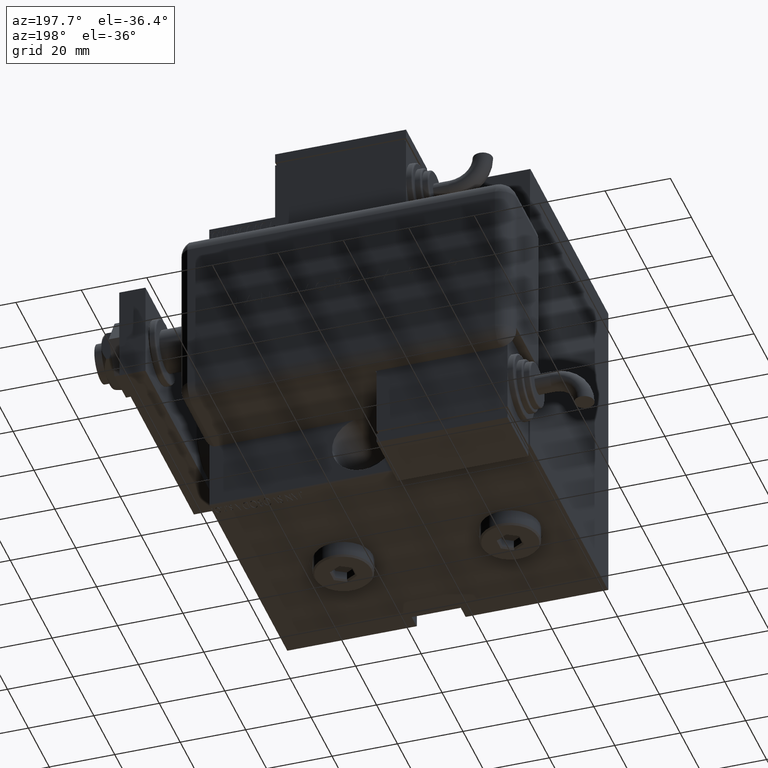
[diagram: clean part render]
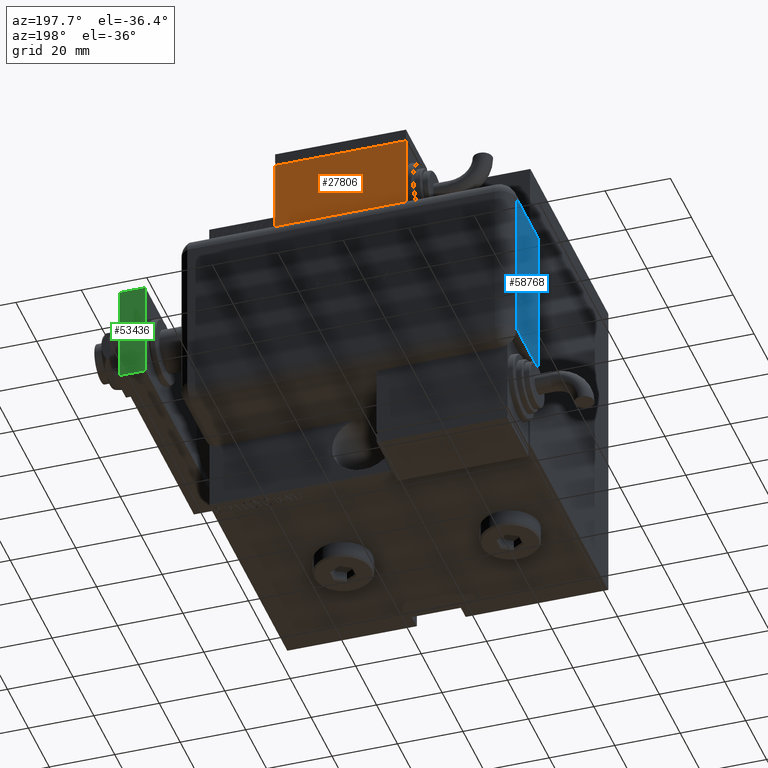
[diagram: same view with three faces highlighted in distinct colors, each labeled with its STEP entity id]
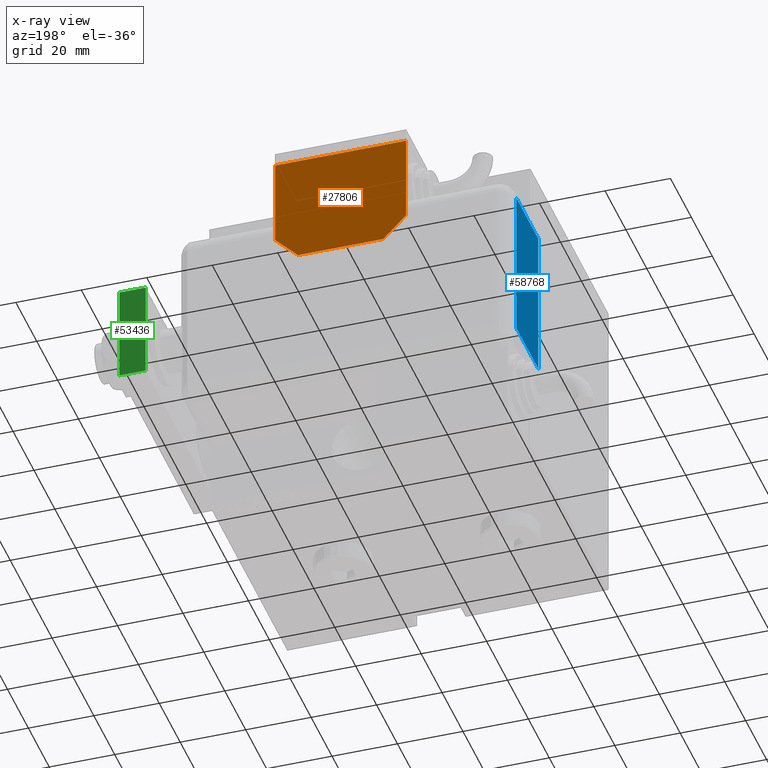
[diagram: x-ray of the same camera — body ghosted, the three highlighted faces saturated]
A machine part, auxiliary view with three faces highlighted in distinct colors.
The next image is the same camera in x-ray (body ghosted, the three faces saturated) — at least one of them is partly hidden behind the body in this view.
Their STEP definitions:

[orange] entity #27806 — the highlighted planar face has unit normal (0, 1, 0).
#546 = ORIENTED_EDGE ( 'NONE', *, *, #23569, .T. ) ;
#819 = LINE ( 'NONE', #4480, #3988 ) ;
#988 = CARTESIAN_POINT ( 'NONE',  ( 12.99999999999999112, 20.50000000000009592, 10.00000000000000000 ) ) ;
#2437 = FACE_OUTER_BOUND ( 'NONE', #27218, .T. ) ;
#3336 = CARTESIAN_POINT ( 'NONE',  ( -19.99999999999993960, 13.49999999999986500, 10.00000000000000000 ) ) ;
#3988 = VECTOR ( 'NONE', #18698, 1000.000000000000000 ) ;
#4480 = CARTESIAN_POINT ( 'NONE',  ( 20.00000000000005329, -13.49999999999996092, 10.00000000000000000 ) ) ;
#5214 = DIRECTION ( 'NONE',  ( -1.284980352575421081E-16, -1.000000000000000000, -0.000000000000000000 ) ) ;
#7365 = LINE ( 'NONE', #30941, #18666 ) ;
#10716 = CARTESIAN_POINT ( 'NONE',  ( -19.99999999999994316, -13.49999999999996092, 10.00000000000000000 ) ) ;
#10947 = VERTEX_POINT ( 'NONE', #26266 ) ;
#11254 = CARTESIAN_POINT ( 'NONE',  ( -19.99999999999994316, -13.49999999999996092, 10.00000000000000000 ) ) ;
#13191 = ORIENTED_EDGE ( 'NONE', *, *, #38344, .T. ) ;
#16723 = EDGE_CURVE ( 'NONE', #20935, #20937, #7365, .T. ) ;
#16730 = DIRECTION ( 'NONE',  ( -1.000000000000000000, 0.000000000000000000, 0.000000000000000000 ) ) ;
#16819 = VECTOR ( 'NONE', #5214, 1000.000000000000000 ) ;
#18286 = CARTESIAN_POINT ( 'NONE',  ( 20.00000000000005684, 13.50000000000003730, 10.00000000000000000 ) ) ;
#18666 = VECTOR ( 'NONE', #16730, 1000.000000000000000 ) ;
#18698 = DIRECTION ( 'NONE',  ( 1.284980352575412699E-16, 1.000000000000000000, 0.000000000000000000 ) ) ;
#20058 = VECTOR ( 'NONE', #29168, 1000.000000000000000 ) ;
#20903 = DIRECTION ( 'NONE',  ( 0.000000000000000000, 0.000000000000000000, 1.000000000000000000 ) ) ;
#20935 = VERTEX_POINT ( 'NONE', #988 ) ;
#20937 = VERTEX_POINT ( 'NONE', #28835 ) ;
#23122 = LINE ( 'NONE', #35820, #48945 ) ;
#23569 = EDGE_CURVE ( 'NONE', #28881, #10947, #24252, .T. ) ;
#24252 = LINE ( 'NONE', #50886, #16819 ) ;
#25488 = EDGE_CURVE ( 'NONE', #55595, #20935, #23122, .T. ) ;
#26266 = CARTESIAN_POINT ( 'NONE',  ( -19.99999999999993960, 2.569960705150834076E-15, 10.00000000000000000 ) ) ;
#27156 = LINE ( 'NONE', #55281, #30138 ) ;
#27218 = EDGE_LOOP ( 'NONE', ( #54898, #39810, #36766, #546, #44560, #50809, #13191 ) ) ;
#27806 = ADVANCED_FACE ( 'NONE', ( #2437 ), #40241, .T. ) ;
#28075 = VERTEX_POINT ( 'NONE', #55871 ) ;
#28835 = CARTESIAN_POINT ( 'NONE',  ( -12.99999999999994138, 20.50000000000009592, 10.00000000000000000 ) ) ;
#28881 = VERTEX_POINT ( 'NONE', #3336 ) ;
#29168 = DIRECTION ( 'NONE',  ( 1.000000000000000000, 0.000000000000000000, 0.000000000000000000 ) ) ;
#29649 = VERTEX_POINT ( 'NONE', #11254 ) ;
#30138 = VECTOR ( 'NONE', #45596, 1000.000000000000000 ) ;
#30941 = CARTESIAN_POINT ( 'NONE',  ( -10.00000000000004086, 20.50000000000009592, 10.00000000000000000 ) ) ;
#31423 = LINE ( 'NONE', #58635, #45993 ) ;
#31591 = DIRECTION ( 'NONE',  ( -0.7071067811865479058, 0.7071067811865470176, -0.000000000000000000 ) ) ;
#33302 = AXIS2_PLACEMENT_3D ( 'NONE', #58673, #20903, #35086 ) ;
#35086 = DIRECTION ( 'NONE',  ( 1.000000000000000000, 0.000000000000000000, -0.000000000000000000 ) ) ;
#35820 = CARTESIAN_POINT ( 'NONE',  ( 9.999999999999984013, 23.50000000000009592, 10.00000000000000000 ) ) ;
#36766 = ORIENTED_EDGE ( 'NONE', *, *, #54121, .T. ) ;
#38344 = EDGE_CURVE ( 'NONE', #28075, #55595, #819, .T. ) ;
#39810 = ORIENTED_EDGE ( 'NONE', *, *, #16723, .T. ) ;
#40138 = EDGE_CURVE ( 'NONE', #10947, #29649, #27156, .T. ) ;
#40241 = PLANE ( 'NONE',  #33302 ) ;
#42478 = LINE ( 'NONE', #10716, #20058 ) ;
#44560 = ORIENTED_EDGE ( 'NONE', *, *, #40138, .T. ) ;
#45596 = DIRECTION ( 'NONE',  ( -1.284980352575421081E-16, -1.000000000000000000, -0.000000000000000000 ) ) ;
#45993 = VECTOR ( 'NONE', #49568, 1000.000000000000000 ) ;
#48945 = VECTOR ( 'NONE', #31591, 1000.000000000000114 ) ;
#49568 = DIRECTION ( 'NONE',  ( -0.7071067811865356934, -0.7071067811865593411, -0.000000000000000000 ) ) ;
#50809 = ORIENTED_EDGE ( 'NONE', *, *, #57621, .T. ) ;
#50886 = CARTESIAN_POINT ( 'NONE',  ( -19.99999999999994316, -13.49999999999996092, 10.00000000000000000 ) ) ;
#54121 = EDGE_CURVE ( 'NONE', #20937, #28881, #31423, .T. ) ;
#54898 = ORIENTED_EDGE ( 'NONE', *, *, #25488, .T. ) ;
#55281 = CARTESIAN_POINT ( 'NONE',  ( -19.99999999999994316, -13.49999999999996092, 10.00000000000000000 ) ) ;
#55595 = VERTEX_POINT ( 'NONE', #18286 ) ;
#55871 = CARTESIAN_POINT ( 'NONE',  ( 20.00000000000005329, -13.49999999999996092, 10.00000000000000000 ) ) ;
#57621 = EDGE_CURVE ( 'NONE', #29649, #28075, #42478, .T. ) ;
#58635 = CARTESIAN_POINT ( 'NONE',  ( -19.99999999999993960, 13.49999999999986500, 10.00000000000000000 ) ) ;
#58673 = CARTESIAN_POINT ( 'NONE',  ( 0.000000000000000000, 0.000000000000000000, 10.00000000000000000 ) ) ;

[blue] entity #58768 — the highlighted planar face has unit normal (-1, -0, -0).
#515 = CARTESIAN_POINT ( 'NONE',  ( -23.99999999999999289, 1.007682896475360021E-13, 0.000000000000000000 ) ) ;
#3864 = EDGE_CURVE ( 'NONE', #19732, #19689, #32656, .T. ) ;
#4399 = LINE ( 'NONE', #51268, #9894 ) ;
#7152 = CARTESIAN_POINT ( 'NONE',  ( 23.00000000000000000, 0.000000000000000000, 0.000000000000000000 ) ) ;
#8863 = FACE_OUTER_BOUND ( 'NONE', #44868, .T. ) ;
#9894 = VECTOR ( 'NONE', #27085, 1000.000000000000000 ) ;
#12320 = LINE ( 'NONE', #45809, #56580 ) ;
#17294 = EDGE_CURVE ( 'NONE', #58530, #19732, #4399, .T. ) ;
#18299 = DIRECTION ( 'NONE',  ( -0.000000000000000000, 1.000000000000000000, -0.000000000000000000 ) ) ;
#18876 = VERTEX_POINT ( 'NONE', #21343 ) ;
#18936 = ORIENTED_EDGE ( 'NONE', *, *, #17294, .F. ) ;
#19689 = VERTEX_POINT ( 'NONE', #26179 ) ;
#19732 = VERTEX_POINT ( 'NONE', #7152 ) ;
#21343 = CARTESIAN_POINT ( 'NONE',  ( -23.99999999999999645, 20.79999999999998295, 0.000000000000000000 ) ) ;
#22353 = VECTOR ( 'NONE', #52020, 1000.000000000000000 ) ;
#24192 = CARTESIAN_POINT ( 'NONE',  ( 23.99999999999999289, 20.79999999999998295, 0.000000000000000000 ) ) ;
#25448 = ORIENTED_EDGE ( 'NONE', *, *, #52522, .T. ) ;
#26179 = CARTESIAN_POINT ( 'NONE',  ( 23.00000000000000000, 20.79999999999998295, 1.734723475976807094E-15 ) ) ;
#27085 = DIRECTION ( 'NONE',  ( 1.000000000000000000, -2.079047426506382950E-15, -0.000000000000000000 ) ) ;
#27913 = DIRECTION ( 'NONE',  ( 0.000000000000000000, 0.000000000000000000, -1.000000000000000000 ) ) ;
#32656 = LINE ( 'NONE', #51700, #33641 ) ;
#33641 = VECTOR ( 'NONE', #56529, 1000.000000000000000 ) ;
#35248 = DIRECTION ( 'NONE',  ( -1.000000000000000000, 0.000000000000000000, -0.000000000000000000 ) ) ;
#36688 = PLANE ( 'NONE',  #57759 ) ;
#38077 = EDGE_CURVE ( 'NONE', #18876, #19689, #38413, .T. ) ;
#38413 = LINE ( 'NONE', #24192, #22353 ) ;
#44868 = EDGE_LOOP ( 'NONE', ( #59745, #53055, #18936, #25448 ) ) ;
#45757 = CARTESIAN_POINT ( 'NONE',  ( 0.000000000000000000, 0.000000000000000000, 0.000000000000000000 ) ) ;
#45809 = CARTESIAN_POINT ( 'NONE',  ( -23.99999999999999645, 20.79999999999998295, 0.000000000000000000 ) ) ;
#51268 = CARTESIAN_POINT ( 'NONE',  ( 28.99999999999999645, -9.421223957302265857E-15, 0.000000000000000000 ) ) ;
#51700 = CARTESIAN_POINT ( 'NONE',  ( 23.00000000000000000, 0.000000000000000000, 0.000000000000000000 ) ) ;
#52020 = DIRECTION ( 'NONE',  ( 1.000000000000000000, -0.000000000000000000, -0.000000000000000000 ) ) ;
#52522 = EDGE_CURVE ( 'NONE', #58530, #18876, #12320, .T. ) ;
#53055 = ORIENTED_EDGE ( 'NONE', *, *, #3864, .F. ) ;
#56529 = DIRECTION ( 'NONE',  ( 0.000000000000000000, 1.000000000000000000, 0.000000000000000000 ) ) ;
#56580 = VECTOR ( 'NONE', #18299, 1000.000000000000000 ) ;
#57759 = AXIS2_PLACEMENT_3D ( 'NONE', #45757, #27913, #35248 ) ;
#58530 = VERTEX_POINT ( 'NONE', #515 ) ;
#58768 = ADVANCED_FACE ( 'NONE', ( #8863 ), #36688, .T. ) ;
#59745 = ORIENTED_EDGE ( 'NONE', *, *, #38077, .T. ) ;

[green] entity #53436 — the highlighted planar face has unit normal (0, -1, 0).
#2475 = ORIENTED_EDGE ( 'NONE', *, *, #29599, .T. ) ;
#2656 = EDGE_LOOP ( 'NONE', ( #2475, #39286, #59458, #24576 ) ) ;
#6824 = VECTOR ( 'NONE', #39636, 1000.000000000000000 ) ;
#8315 = AXIS2_PLACEMENT_3D ( 'NONE', #41963, #47386, #42852 ) ;
#9439 = EDGE_CURVE ( 'NONE', #15883, #20834, #17255, .T. ) ;
#10982 = CARTESIAN_POINT ( 'NONE',  ( -14.99999999999999822, 76.50000000000000000, 0.000000000000000000 ) ) ;
#11412 = LINE ( 'NONE', #48025, #30230 ) ;
#12153 = CARTESIAN_POINT ( 'NONE',  ( 15.00000000000000355, 76.50000000000000000, 8.000000000000000000 ) ) ;
#13557 = VERTEX_POINT ( 'NONE', #56290 ) ;
#14865 = VECTOR ( 'NONE', #21529, 1000.000000000000000 ) ;
#15883 = VERTEX_POINT ( 'NONE', #40165 ) ;
#17255 = LINE ( 'NONE', #54144, #6824 ) ;
#20834 = VERTEX_POINT ( 'NONE', #10982 ) ;
#21046 = EDGE_CURVE ( 'NONE', #59064, #15883, #57816, .T. ) ;
#21529 = DIRECTION ( 'NONE',  ( -1.000000000000000000, 0.000000000000000000, 0.000000000000000000 ) ) ;
#24576 = ORIENTED_EDGE ( 'NONE', *, *, #43305, .T. ) ;
#28944 = FACE_OUTER_BOUND ( 'NONE', #2656, .T. ) ;
#29599 = EDGE_CURVE ( 'NONE', #13557, #20834, #35774, .T. ) ;
#30230 = VECTOR ( 'NONE', #38949, 1000.000000000000000 ) ;
#35774 = LINE ( 'NONE', #49090, #44025 ) ;
#38949 = DIRECTION ( 'NONE',  ( -0.000000000000000000, -0.000000000000000000, -1.000000000000000000 ) ) ;
#39286 = ORIENTED_EDGE ( 'NONE', *, *, #9439, .F. ) ;
#39636 = DIRECTION ( 'NONE',  ( -0.000000000000000000, -0.000000000000000000, -1.000000000000000000 ) ) ;
#40165 = CARTESIAN_POINT ( 'NONE',  ( -14.99999999999999822, 76.50000000000000000, 8.000000000000000000 ) ) ;
#41963 = CARTESIAN_POINT ( 'NONE',  ( 15.00000000000000355, 76.50000000000000000, 8.000000000000000000 ) ) ;
#42852 = DIRECTION ( 'NONE',  ( 0.000000000000000000, -0.000000000000000000, -1.000000000000000000 ) ) ;
#43305 = EDGE_CURVE ( 'NONE', #59064, #13557, #11412, .T. ) ;
#44025 = VECTOR ( 'NONE', #54222, 1000.000000000000000 ) ;
#47386 = DIRECTION ( 'NONE',  ( 0.000000000000000000, -1.000000000000000000, 0.000000000000000000 ) ) ;
#48025 = CARTESIAN_POINT ( 'NONE',  ( 15.00000000000000355, 76.50000000000000000, 8.000000000000000000 ) ) ;
#49090 = CARTESIAN_POINT ( 'NONE',  ( 15.00000000000000355, 76.50000000000000000, 0.000000000000000000 ) ) ;
#51328 = PLANE ( 'NONE',  #8315 ) ;
#53436 = ADVANCED_FACE ( 'NONE', ( #28944 ), #51328, .F. ) ;
#54144 = CARTESIAN_POINT ( 'NONE',  ( -14.99999999999999822, 76.50000000000000000, 8.000000000000000000 ) ) ;
#54222 = DIRECTION ( 'NONE',  ( -1.000000000000000000, 0.000000000000000000, 0.000000000000000000 ) ) ;
#54460 = CARTESIAN_POINT ( 'NONE',  ( 15.00000000000000355, 76.50000000000000000, 8.000000000000000000 ) ) ;
#56290 = CARTESIAN_POINT ( 'NONE',  ( 15.00000000000000355, 76.50000000000000000, 0.000000000000000000 ) ) ;
#57816 = LINE ( 'NONE', #12153, #14865 ) ;
#59064 = VERTEX_POINT ( 'NONE', #54460 ) ;
#59458 = ORIENTED_EDGE ( 'NONE', *, *, #21046, .F. ) ;